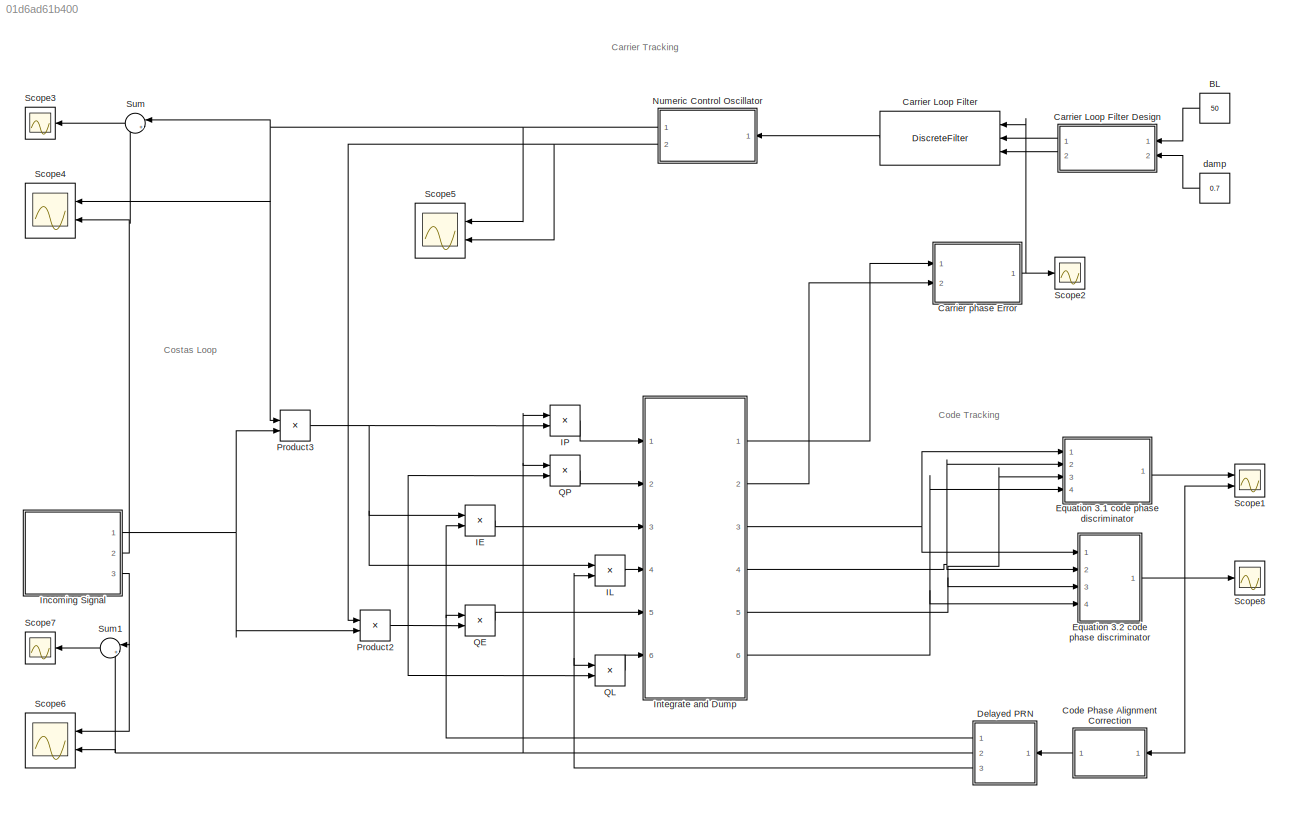
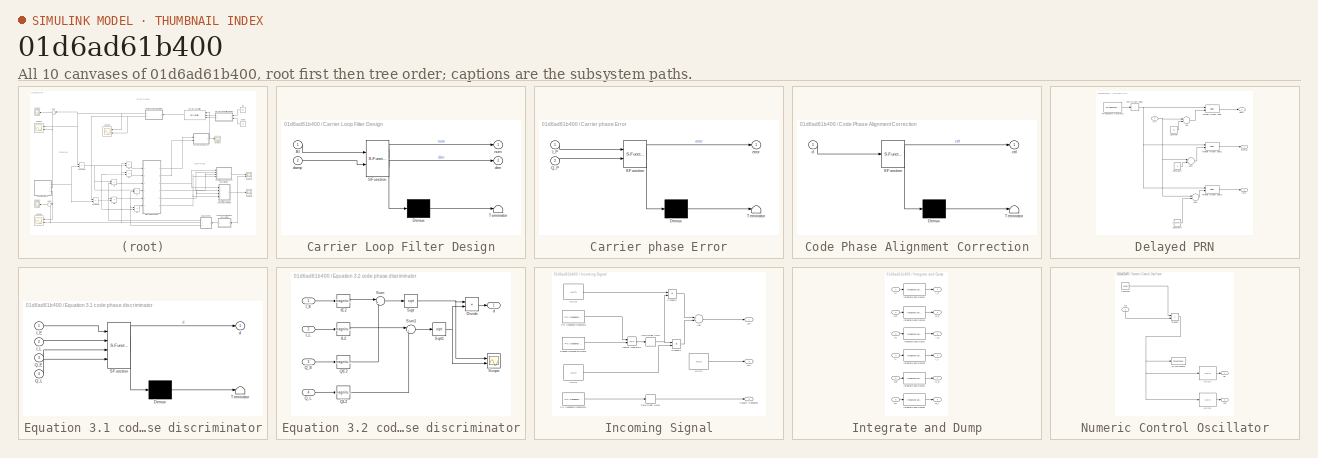
[diagram: thumbnail index - all 10 canvases of the model, root first then tree order]
MODEL slx_01d6ad61b400
KIND model
CONFIG AbsTol = auto
CONFIG FixedStep = auto
CONFIG InitFcn = SampleFreq = 122.76e6;\nSample_Time = 1/SampleFreq;\nIntegration_time = 1e-3;
CONFIG MaxStep = 8.145975887911372E-11
CONFIG MinStep = auto
CONFIG RelTol = 1e-3
CONFIG SampleTimeConstraint = Unconstrained
CONFIG Solver = VariableStepDiscrete
CONFIG SolverMode = Auto
CONFIG SolverName = VariableStepDiscrete
CONFIG StartTime = 0.0
CONFIG StopTime = 2e-3
BLOCK [Constant] BL
  Value = 50
BLOCK [DiscreteFilter] Carrier Loop Filter
  DenAccumDataTypeStr = fixdt(1,16,0)
  DenProductDataTypeStr = fixdt(1,16,0)
  Denominator = [1 -1 1]
  DenominatorSource = Input port
  FilterStructure = Direct form I
  InputPortMap = u0,p1,p3
  LockScale = on
  NumAccumDataTypeStr = fixdt(1,16,0)
  NumProductDataTypeStr = fixdt(1,16,0)
  Numerator = c1+c2
  NumeratorSource = Input port
  OutDataTypeStr = fixdt(1,16,0)
  Ports = [3, 1]
  SampleTime = Integration_time
  SaturateOnIntegerOverflow = on
  a0EqualsOne = on
BLOCK [SubSystem] Carrier Loop Filter Design
  ErrorFcn = Stateflow.Translate.translate
  PermitHierarchicalResolution = ExplicitOnly
  Ports = [2, 2]
  RequestExecContextInheritance = off
  SFBlockType = MATLAB Function
  TreatAsAtomicUnit = on
  Variant = off
BLOCK [Demux] Carrier Loop Filter Design/ Demux 
  Outputs = 1
  Ports = [1, 1]
BLOCK [S-Function] Carrier Loop Filter Design/ SFunction 
  EnableBusSupport = on
  FunctionName = sf_sfun
  PortCounts = [2 3]
  Ports = [2, 3]
  SFunctionDeploymentMode = off
  Tag = Stateflow S-Function Simplified_L1F_SPp 4
BLOCK [Terminator] Carrier Loop Filter Design/ Terminator 
BLOCK [Inport] Carrier Loop Filter Design/Bl
  IconDisplay = Port number
BLOCK [Inport] Carrier Loop Filter Design/damp
  IconDisplay = Port number
  Port = 2
BLOCK [Outport] Carrier Loop Filter Design/den
  IconDisplay = Port number
  Port = 2
BLOCK [Outport] Carrier Loop Filter Design/num
  IconDisplay = Port number
BLOCK [SubSystem] Carrier phase Error
  ErrorFcn = Stateflow.Translate.translate
  PermitHierarchicalResolution = ExplicitOnly
  Ports = [2, 1]
  RequestExecContextInheritance = off
  SFBlockType = MATLAB Function
  TreatAsAtomicUnit = on
  Variant = off
BLOCK [Demux] Carrier phase Error/ Demux 
  Outputs = 1
  Ports = [1, 1]
BLOCK [S-Function] Carrier phase Error/ SFunction 
  EnableBusSupport = on
  FunctionName = sf_sfun
  PortCounts = [2 2]
  Ports = [2, 2]
  SFunctionDeploymentMode = off
  Tag = Stateflow S-Function Simplified_L1F_SPp 3
BLOCK [Terminator] Carrier phase Error/ Terminator 
BLOCK [Inport] Carrier phase Error/I_P
  IconDisplay = Port number
BLOCK [Inport] Carrier phase Error/Q_P
  IconDisplay = Port number
  Port = 2
BLOCK [Outport] Carrier phase Error/error
  IconDisplay = Port number
BLOCK [SubSystem] Code Phase Alignment Correction
  ErrorFcn = Stateflow.Translate.translate
  PermitHierarchicalResolution = ExplicitOnly
  Ports = [1, 1]
  RequestExecContextInheritance = off
  SFBlockType = MATLAB Function
  TreatAsAtomicUnit = on
  Variant = off
BLOCK [Demux] Code Phase Alignment Correction/ Demux 
  Outputs = 1
  Ports = [1, 1]
BLOCK [S-Function] Code Phase Alignment Correction/ SFunction 
  EnableBusSupport = on
  FunctionName = sf_sfun
  PortCounts = [1 2]
  Ports = [1, 2]
  SFunctionDeploymentMode = off
  Tag = Stateflow S-Function Simplified_L1F_SPp 2
BLOCK [Terminator] Code Phase Alignment Correction/ Terminator 
BLOCK [Outport] Code Phase Alignment Correction/ctrl
  IconDisplay = Port number
BLOCK [Inport] Code Phase Alignment Correction/d
  IconDisplay = Port number
BLOCK [SubSystem] Delayed PRN
  Ports = [1, 3]
  RequestExecContextInheritance = off
  Variant = off
BLOCK [Sum] Delayed PRN/Add
  InputSameDT = off
  OutDataTypeStr = Inherit: Inherit via internal rule
  Ports = [2, 1]
  SaturateOnIntegerOverflow = off
BLOCK [Sum] Delayed PRN/Add1
  InputSameDT = off
  OutDataTypeStr = Inherit: Inherit via internal rule
  Ports = [2, 1]
  SaturateOnIntegerOverflow = off
BLOCK [Sum] Delayed PRN/Add2
  InputSameDT = off
  OutDataTypeStr = Inherit: Inherit via internal rule
  Ports = [2, 1]
  SaturateOnIntegerOverflow = off
BLOCK [Constant] Delayed PRN/Constant
  SampleTime = Sample_Time
  Value = 16
BLOCK [Constant] Delayed PRN/Constant2
  SampleTime = Sample_Time
  Value = 0
BLOCK [Constant] Delayed PRN/Constant4
  SampleTime = Sample_Time
  Value = 122.76e6-16
BLOCK [Outport] Delayed PRN/Early
  IconDisplay = Port number
BLOCK [Outport] Delayed PRN/Late
  IconDisplay = Port number
  Port = 3
BLOCK [Reference] Delayed PRN/PN Sequence Generator  REF=commseqgen3/PN Sequence
Generator
  Ports = [0, 1]
  SourceBlock = commseqgen3/PN Sequence\nGenerator
  SourceType = PN Sequence Generator
BLOCK [Outport] Delayed PRN/Prompt
  IconDisplay = Port number
  Port = 2
BLOCK [Delay] Delayed PRN/Variable Integer Delay
  DelayLengthSource = Input port
  InputPortMap = u0,p1
  Ports = [2, 1]
BLOCK [Delay] Delayed PRN/Variable Integer Delay1
  DelayLengthSource = Input port
  InputPortMap = u0,p1
  Ports = [2, 1]
BLOCK [Delay] Delayed PRN/Variable Integer Delay2
  DelayLengthSource = Input port
  InputPortMap = u0,p1
  Ports = [2, 1]
BLOCK [ZeroOrderHold] Delayed PRN/Zero-Order Hold2
  SampleTime = Sample_Time
BLOCK [Inport] Delayed PRN/ctrl
  IconDisplay = Port number
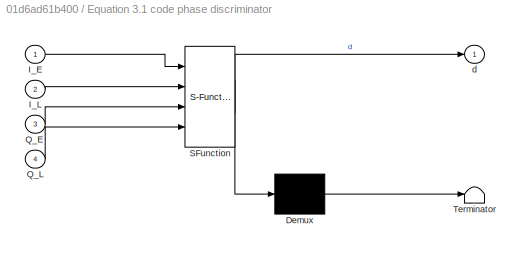
BLOCK [SubSystem] Equation 3.1 code phase discriminator
  ErrorFcn = Stateflow.Translate.translate
  PermitHierarchicalResolution = ExplicitOnly
  Ports = [4, 1]
  RequestExecContextInheritance = off
  SFBlockType = MATLAB Function
  TreatAsAtomicUnit = on
  Variant = off
BLOCK [Demux] Equation 3.1 code phase discriminator/ Demux 
  Outputs = 1
  Ports = [1, 1]
BLOCK [S-Function] Equation 3.1 code phase discriminator/ SFunction 
  EnableBusSupport = on
  FunctionName = sf_sfun
  PortCounts = [4 2]
  Ports = [4, 2]
  SFunctionDeploymentMode = off
  Tag = Stateflow S-Function Simplified_L1F_SPp 1
BLOCK [Terminator] Equation 3.1 code phase discriminator/ Terminator 
BLOCK [Inport] Equation 3.1 code phase discriminator/I_E
  IconDisplay = Port number
BLOCK [Inport] Equation 3.1 code phase discriminator/I_L
  IconDisplay = Port number
  Port = 2
BLOCK [Inport] Equation 3.1 code phase discriminator/Q_E
  IconDisplay = Port number
  Port = 3
BLOCK [Inport] Equation 3.1 code phase discriminator/Q_L
  IconDisplay = Port number
  Port = 4
BLOCK [Outport] Equation 3.1 code phase discriminator/d
  IconDisplay = Port number
BLOCK [SubSystem] Equation 3.2 code phase discriminator
  Ports = [4, 1]
  RequestExecContextInheritance = off
  Variant = off
BLOCK [Product] Equation 3.2 code phase discriminator/Divide
  InputSameDT = off
  Inputs = */
  OutDataTypeStr = Inherit: Inherit via internal rule
  Ports = [2, 1]
  RndMeth = Floor
  SaturateOnIntegerOverflow = off
BLOCK [Math] Equation 3.2 code phase discriminator/IE2
  Operator = magnitude^2
  Ports = [1, 1]
BLOCK [Math] Equation 3.2 code phase discriminator/IL2
  Operator = magnitude^2
  Ports = [1, 1]
BLOCK [Inport] Equation 3.2 code phase discriminator/I_E
  IconDisplay = Port number
BLOCK [Inport] Equation 3.2 code phase discriminator/I_L
  IconDisplay = Port number
  Port = 2
BLOCK [Math] Equation 3.2 code phase discriminator/QE2
  Operator = magnitude^2
  Ports = [1, 1]
BLOCK [Math] Equation 3.2 code phase discriminator/QL2
  Operator = magnitude^2
  Ports = [1, 1]
BLOCK [Inport] Equation 3.2 code phase discriminator/Q_E
  IconDisplay = Port number
  Port = 3
BLOCK [Inport] Equation 3.2 code phase discriminator/Q_L
  IconDisplay = Port number
  Port = 4
BLOCK [Scope] Equation 3.2 code phase discriminator/Scope
  NumInputPorts = 2
  Ports = [2]
  ScopeSpecificationString = C++SS(StrPVP('SaveName','ScopeData1'),StrPVP('LimitDataPoints','on'),StrPVP('DataFormat','Array'),StrPVP('Decimation','1'),StrPVP('BlockParamSampleInput','off'))
BLOCK [Sqrt] Equation 3.2 code phase discriminator/Sqrt
BLOCK [Sqrt] Equation 3.2 code phase discriminator/Sqrt1
BLOCK [Sum] Equation 3.2 code phase discriminator/Sum
  IconShape = round
  InputSameDT = off
  Inputs = |++
  OutDataTypeStr = Inherit: Inherit via internal rule
  Ports = [2, 1]
  SaturateOnIntegerOverflow = off
BLOCK [Sum] Equation 3.2 code phase discriminator/Sum1
  IconShape = round
  InputSameDT = off
  Inputs = |++
  OutDataTypeStr = Inherit: Inherit via internal rule
  Ports = [2, 1]
  SaturateOnIntegerOverflow = off
BLOCK [Outport] Equation 3.2 code phase discriminator/d
  IconDisplay = Port number
BLOCK [Product] IE
  InputSameDT = off
  OutDataTypeStr = Inherit: Inherit via internal rule
  Ports = [2, 1]
  RndMeth = Floor
  SaturateOnIntegerOverflow = off
BLOCK [Product] IL
  InputSameDT = off
  OutDataTypeStr = Inherit: Inherit via internal rule
  Ports = [2, 1]
  RndMeth = Floor
  SaturateOnIntegerOverflow = off
BLOCK [Product] IP
  InputSameDT = off
  OutDataTypeStr = Inherit: Inherit via internal rule
  Ports = [2, 1]
  RndMeth = Floor
  SaturateOnIntegerOverflow = off
BLOCK [SubSystem] Incoming Signal
  Ports = [0, 3]
  RequestExecContextInheritance = off
  Variant = off
BLOCK [Sum] Incoming Signal/Add
  InputSameDT = off
  OutDataTypeStr = Inherit: Inherit via internal rule
  Ports = [2, 1]
  SaturateOnIntegerOverflow = off
BLOCK [Outport] Incoming Signal/Kasami Sequence 
  IconDisplay = Port number
  Port = 3
BLOCK [Outport] Incoming Signal/L1F
  IconDisplay = Port number
BLOCK [Logic] Incoming Signal/Logical Operator2
  AllPortsSameDT = off
  Operator = XOR
  OutDataTypeStr = boolean
  Ports = [2, 1]
BLOCK [Reference] Incoming Signal/NCO2  REF=dspsigops/NCO
  Ports = [0, 1]
  SourceBlock = dspsigops/NCO
  SourceType = NCO
BLOCK [Reference] Incoming Signal/NCO3  REF=dspsigops/NCO
  Ports = [0, 1]
  SourceBlock = dspsigops/NCO
  SourceType = NCO
BLOCK [Reference] Incoming Signal/NCO4  REF=dspsigops/NCO
  Ports = [0, 1]
  SourceBlock = dspsigops/NCO
  SourceType = NCO
BLOCK [Reference] Incoming Signal/PN Sequence Generator  REF=commseqgen3/PN Sequence
Generator
  Ports = [0, 1]
  SourceBlock = commseqgen3/PN Sequence\nGenerator
  SourceType = PN Sequence Generator
BLOCK [Reference] Incoming Signal/PN Sequence Generator1  REF=commseqgen3/PN Sequence
Generator
  Ports = [0, 1]
  SourceBlock = commseqgen3/PN Sequence\nGenerator
  SourceType = PN Sequence Generator
BLOCK [Product] Incoming Signal/Product2
  InputSameDT = off
  OutDataTypeStr = Inherit: Inherit via internal rule
  Ports = [2, 1]
  RndMeth = Floor
  SaturateOnIntegerOverflow = off
BLOCK [Product] Incoming Signal/Product3
  InputSameDT = off
  OutDataTypeStr = Inherit: Inherit via internal rule
  Ports = [2, 1]
  RndMeth = Floor
  SaturateOnIntegerOverflow = off
BLOCK [Reference] Incoming Signal/Pseudo Navigation Data1  REF=commseqgen3/PN Sequence
Generator
  Ports = [0, 1]
  SourceBlock = commseqgen3/PN Sequence\nGenerator
  SourceType = PN Sequence Generator
BLOCK [ZeroOrderHold] Incoming Signal/Zero-Order Hold
  SampleTime = Sample_Time
BLOCK [ZeroOrderHold] Incoming Signal/Zero-Order Hold1
  SampleTime = Sample_Time
BLOCK [Outport] Incoming Signal/sin
  IconDisplay = Port number
  Port = 2
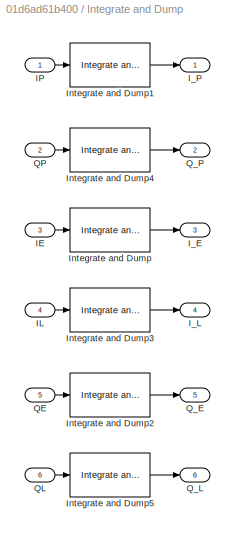
BLOCK [SubSystem] Integrate and Dump
  Ports = [6, 6]
  RequestExecContextInheritance = off
  Variant = off
BLOCK [Inport] Integrate and Dump/IE
  IconDisplay = Port number
  Port = 3
BLOCK [Inport] Integrate and Dump/IL
  IconDisplay = Port number
  Port = 4
BLOCK [Inport] Integrate and Dump/IP
  IconDisplay = Port number
BLOCK [Outport] Integrate and Dump/I_E
  IconDisplay = Port number
  Port = 3
BLOCK [Outport] Integrate and Dump/I_L
  IconDisplay = Port number
  Port = 4
BLOCK [Outport] Integrate and Dump/I_P
  IconDisplay = Port number
BLOCK [Reference] Integrate and Dump/Integrate and Dump  REF=commfilt2/Integrate
and Dump
  Ports = [1, 1]
  SourceBlock = commfilt2/Integrate\nand Dump
  SourceType = Integrate and Dump
BLOCK [Reference] Integrate and Dump/Integrate and Dump1  REF=commfilt2/Integrate
and Dump
  Ports = [1, 1]
  SourceBlock = commfilt2/Integrate\nand Dump
  SourceType = Integrate and Dump
BLOCK [Reference] Integrate and Dump/Integrate and Dump2  REF=commfilt2/Integrate
and Dump
  Ports = [1, 1]
  SourceBlock = commfilt2/Integrate\nand Dump
  SourceType = Integrate and Dump
BLOCK [Reference] Integrate and Dump/Integrate and Dump3  REF=commfilt2/Integrate
and Dump
  Ports = [1, 1]
  SourceBlock = commfilt2/Integrate\nand Dump
  SourceType = Integrate and Dump
BLOCK [Reference] Integrate and Dump/Integrate and Dump4  REF=commfilt2/Integrate
and Dump
  Ports = [1, 1]
  SourceBlock = commfilt2/Integrate\nand Dump
  SourceType = Integrate and Dump
BLOCK [Reference] Integrate and Dump/Integrate and Dump5  REF=commfilt2/Integrate
and Dump
  Ports = [1, 1]
  SourceBlock = commfilt2/Integrate\nand Dump
  SourceType = Integrate and Dump
BLOCK [Inport] Integrate and Dump/QE
  IconDisplay = Port number
  Port = 5
BLOCK [Inport] Integrate and Dump/QL
  IconDisplay = Port number
  Port = 6
BLOCK [Inport] Integrate and Dump/QP
  IconDisplay = Port number
  Port = 2
BLOCK [Outport] Integrate and Dump/Q_E
  IconDisplay = Port number
  Port = 5
BLOCK [Outport] Integrate and Dump/Q_L
  IconDisplay = Port number
  Port = 6
BLOCK [Outport] Integrate and Dump/Q_P
  IconDisplay = Port number
  Port = 2
BLOCK [SubSystem] Numeric Control Oscillator
  Ports = [1, 2]
  RequestExecContextInheritance = off
  Variant = off
BLOCK [Constant] Numeric Control Oscillator/Constant
  OutDataTypeStr = fixdt(1,16,0)
  SampleTime = Integration_time
  Value = 180/pi
BLOCK [Reference] Numeric Control Oscillator/NCO2  REF=dspsigops/NCO
  Ports = [1, 1]
  SourceBlock = dspsigops/NCO
  SourceType = NCO
BLOCK [Reference] Numeric Control Oscillator/NCO3  REF=dspsigops/NCO
  Ports = [1, 1]
  SourceBlock = dspsigops/NCO
  SourceType = NCO
BLOCK [Product] Numeric Control Oscillator/Product
  InputSameDT = off
  OutDataTypeStr = Inherit: Inherit via internal rule
  Ports = [2, 1]
  RndMeth = Floor
  SaturateOnIntegerOverflow = off
BLOCK [ToWorkspace] Numeric Control Oscillator/To Workspace
  FixptAsFi = on
  MaxDataPoints = inf
  Ports = [1]
  SampleTime = -1
  Save2DSignal = 2-D array (concatenate along first dimension)
  VariableName = simout6
BLOCK [Outport] Numeric Control Oscillator/cos
  IconDisplay = Port number
  Port = 2
BLOCK [Inport] Numeric Control Oscillator/ctlr
  IconDisplay = Port number
BLOCK [Outport] Numeric Control Oscillator/sin
  IconDisplay = Port number
BLOCK [Product] Product2
  InputSameDT = off
  OutDataTypeStr = Inherit: Inherit via internal rule
  Ports = [2, 1]
  RndMeth = Floor
  SaturateOnIntegerOverflow = off
BLOCK [Product] Product3
  InputSameDT = off
  OutDataTypeStr = Inherit: Inherit via internal rule
  Ports = [2, 1]
  RndMeth = Floor
  SaturateOnIntegerOverflow = off
BLOCK [Product] QE
  InputSameDT = off
  OutDataTypeStr = Inherit: Inherit via internal rule
  Ports = [2, 1]
  RndMeth = Floor
  SaturateOnIntegerOverflow = off
BLOCK [Product] QL
  InputSameDT = off
  OutDataTypeStr = Inherit: Inherit via internal rule
  Ports = [2, 1]
  RndMeth = Floor
  SaturateOnIntegerOverflow = off
BLOCK [Product] QP
  InputSameDT = off
  OutDataTypeStr = Inherit: Inherit via internal rule
  Ports = [2, 1]
  RndMeth = Floor
  SaturateOnIntegerOverflow = off
BLOCK [Scope] Scope1
  NumInputPorts = 2
  Ports = [2]
  ScopeSpecificationString = Simulink.scopes.TimeScopeBlockCfg('CurrentConfiguration', extmgr.ConfigurationSet(extmgr.Configuration('Core','General UI',true),extmgr.Configuration('Core','Source UI',true),extmgr.Configuration('Sources','WiredSimulink',true,'DataLoggingVariableName','ScopeData1'),extmgr.Configuration('Visuals','Time Domain',true,'SerializedDisplays',{struct('MinYLimReal','-1.90638','MaxYLimReal','7.16118','YLab...<+1466ch>
BLOCK [Scope] Scope2
  Ports = [1]
  ScopeSpecificationString = Simulink.scopes.TimeScopeBlockCfg('CurrentConfiguration', extmgr.ConfigurationSet(extmgr.Configuration('Core','General UI',true),extmgr.Configuration('Core','Source UI',true),extmgr.Configuration('Sources','WiredSimulink',true,'DataLoggingVariableName','ScopeData2','DataLoggingLimitDataPoints',true,'DataLoggingSaveFormat','Array','DataLoggingDecimation','1','DataLoggingDecimateData',true),extmgr.C...<+1505ch>
BLOCK [Scope] Scope3
  Ports = [1]
  ScopeSpecificationString = Simulink.scopes.TimeScopeBlockCfg('CurrentConfiguration', extmgr.ConfigurationSet(extmgr.Configuration('Core','General UI',true),extmgr.Configuration('Core','Source UI',true),extmgr.Configuration('Sources','WiredSimulink',true,'DataLoggingVariableName','ScopeData3','DataLoggingLimitDataPoints',true,'DataLoggingSaveFormat','Array','DataLoggingDecimation','1','DataLoggingDecimateData',true),extmgr.C...<+1484ch>
BLOCK [Scope] Scope4
  NumInputPorts = 2
  Ports = [2]
  ScopeSpecificationString = Simulink.scopes.TimeScopeBlockCfg('CurrentConfiguration', extmgr.ConfigurationSet(extmgr.Configuration('Core','General UI',true),extmgr.Configuration('Core','Source UI',true),extmgr.Configuration('Sources','WiredSimulink',true,'DataLoggingVariableName','ScopeData4'),extmgr.Configuration('Visuals','Time Domain',true,'SerializedDisplays',{struct('MinYLimReal','-1.0867','MaxYLimReal','1.13147','YLabe...<+1453ch>
BLOCK [Scope] Scope5
  NumInputPorts = 2
  Ports = [2]
  ScopeSpecificationString = Simulink.scopes.TimeScopeBlockCfg('CurrentConfiguration', extmgr.ConfigurationSet(extmgr.Configuration('Core','General UI',true),extmgr.Configuration('Core','Source UI',true),extmgr.Configuration('Sources','WiredSimulink',true,'DataLoggingVariableName','ScopeData5'),extmgr.Configuration('Visuals','Time Domain',true,'SerializedDisplays',{struct('MinYLimReal','-0.21509','MaxYLimReal','1.10475','YLab...<+1408ch>
BLOCK [Scope] Scope6
  NumInputPorts = 2
  Ports = [2]
  ScopeSpecificationString = Simulink.scopes.TimeScopeBlockCfg('CurrentConfiguration', extmgr.ConfigurationSet(extmgr.Configuration('Core','General UI',true),extmgr.Configuration('Core','Source UI',true),extmgr.Configuration('Sources','WiredSimulink',true,'DataLoggingVariableName','ScopeData6'),extmgr.Configuration('Visuals','Time Domain',true),extmgr.Configuration('Tools','Plot Navigation',true),extmgr.Configuration('Tools',...<+58ch>
BLOCK [Scope] Scope7
  Ports = [1]
  ScopeSpecificationString = Simulink.scopes.TimeScopeBlockCfg('CurrentConfiguration', extmgr.ConfigurationSet(extmgr.Configuration('Core','General UI',true),extmgr.Configuration('Core','Source UI',true),extmgr.Configuration('Sources','WiredSimulink',true,'DataLoggingVariableName','ScopeData7','DataLoggingLimitDataPoints',true,'DataLoggingSaveFormat','Array','DataLoggingDecimation','1','DataLoggingDecimateData',true),extmgr.C...<+1529ch>
BLOCK [Scope] Scope8
  Ports = [1]
  ScopeSpecificationString = Simulink.scopes.TimeScopeBlockCfg('CurrentConfiguration', extmgr.ConfigurationSet(extmgr.Configuration('Core','General UI',true),extmgr.Configuration('Core','Source UI',true),extmgr.Configuration('Sources','WiredSimulink',true,'DataLoggingVariableName','ScopeData1'),extmgr.Configuration('Visuals','Time Domain',true,'SerializedDisplays',{struct('MinYLimReal','0.9','MaxYLimReal','1.1','YLabelReal','...<+1391ch>
BLOCK [Sum] Sum
  IconShape = round
  InputSameDT = off
  Inputs = |+-
  OutDataTypeStr = Inherit: Inherit via internal rule
  Ports = [2, 1]
  SaturateOnIntegerOverflow = off
BLOCK [Sum] Sum1
  IconShape = round
  InputSameDT = off
  Inputs = |+-
  OutDataTypeStr = Inherit: Inherit via internal rule
  Ports = [2, 1]
  SaturateOnIntegerOverflow = off
BLOCK [Constant] damp
  Value = 0.7
ANNOTATION (root): Carrier Tracking
ANNOTATION (root): Code Tracking
ANNOTATION (root): Costas Loop
LINE BL:1 -> Carrier Loop Filter Design:1
LINE Carrier Loop Filter Design:1 -> Carrier Loop Filter:2
LINE Carrier Loop Filter Design:2 -> Carrier Loop Filter:3
LINE Carrier Loop Filter:1 -> Numeric Control Oscillator:1
NET Carrier phase Error:1 -> Carrier Loop Filter:1, Scope2:1
LINE Code Phase Alignment Correction:1 -> Delayed PRN:1
LINE Delayed PRN/Add1:1 -> Delayed PRN/Variable Integer Delay1:2
LINE Delayed PRN/Add2:1 -> Delayed PRN/Variable Integer Delay2:2
LINE Delayed PRN/Add:1 -> Delayed PRN/Variable Integer Delay:2
LINE Delayed PRN/Constant2:1 -> Delayed PRN/Add1:2
LINE Delayed PRN/Constant4:1 -> Delayed PRN/Add2:2
LINE Delayed PRN/Constant:1 -> Delayed PRN/Add:2
LINE Delayed PRN/PN Sequence Generator:1 -> Delayed PRN/Zero-Order Hold2:1
LINE Delayed PRN/Variable Integer Delay1:1 -> Delayed PRN/Prompt:1
LINE Delayed PRN/Variable Integer Delay2:1 -> Delayed PRN/Late:1
LINE Delayed PRN/Variable Integer Delay:1 -> Delayed PRN/Early:1
NET Delayed PRN/Zero-Order Hold2:1 -> Delayed PRN/Variable Integer Delay1:1, Delayed PRN/Variable Integer Delay2:1, Delayed PRN/Variable Integer Delay:1
NET Delayed PRN/ctrl:1 -> Delayed PRN/Add1:1, Delayed PRN/Add2:1, Delayed PRN/Add:1
NET Delayed PRN:1 -> IE:2, QE:1
NET Delayed PRN:2 -> IP:1, QP:1, Scope6:2, Sum1:2
NET Delayed PRN:3 -> IL:2, QL:1
LINE Equation 3.1 code phase discriminator:1 -> Scope1:1
LINE Equation 3.2 code phase discriminator/Divide:1 -> Equation 3.2 code phase discriminator/d:1
LINE Equation 3.2 code phase discriminator/IE2:1 -> Equation 3.2 code phase discriminator/Sum:1
LINE Equation 3.2 code phase discriminator/IL2:1 -> Equation 3.2 code phase discriminator/Sum1:1
LINE Equation 3.2 code phase discriminator/I_E:1 -> Equation 3.2 code phase discriminator/IE2:1
LINE Equation 3.2 code phase discriminator/I_L:1 -> Equation 3.2 code phase discriminator/IL2:1
LINE Equation 3.2 code phase discriminator/QE2:1 -> Equation 3.2 code phase discriminator/Sum:2
LINE Equation 3.2 code phase discriminator/QL2:1 -> Equation 3.2 code phase discriminator/Sum1:2
LINE Equation 3.2 code phase discriminator/Q_E:1 -> Equation 3.2 code phase discriminator/QE2:1
LINE Equation 3.2 code phase discriminator/Q_L:1 -> Equation 3.2 code phase discriminator/QL2:1
NET Equation 3.2 code phase discriminator/Sqrt1:1 -> Equation 3.2 code phase discriminator/Divide:2, Equation 3.2 code phase discriminator/Scope:2
NET Equation 3.2 code phase discriminator/Sqrt:1 -> Equation 3.2 code phase discriminator/Divide:1, Equation 3.2 code phase discriminator/Scope:1
LINE Equation 3.2 code phase discriminator/Sum1:1 -> Equation 3.2 code phase discriminator/Sqrt1:1
LINE Equation 3.2 code phase discriminator/Sum:1 -> Equation 3.2 code phase discriminator/Sqrt:1
NET Equation 3.2 code phase discriminator:1 -> Code Phase Alignment Correction:1, Scope1:2, Scope8:1
LINE IE:1 -> Integrate and Dump:3
LINE IL:1 -> Integrate and Dump:4
LINE IP:1 -> Integrate and Dump:1
LINE Incoming Signal/Add:1 -> Incoming Signal/L1F:1
LINE Incoming Signal/Logical Operator2:1 -> Incoming Signal/Zero-Order Hold:1
LINE Incoming Signal/NCO2:1 -> Incoming Signal/sin:1
LINE Incoming Signal/NCO3:1 -> Incoming Signal/Product3:1
LINE Incoming Signal/NCO4:1 -> Incoming Signal/Product2:2
LINE Incoming Signal/PN Sequence Generator1:1 -> Incoming Signal/Zero-Order Hold1:1
LINE Incoming Signal/PN Sequence Generator:1 -> Incoming Signal/Logical Operator2:1
LINE Incoming Signal/Product2:1 -> Incoming Signal/Add:2
LINE Incoming Signal/Product3:1 -> Incoming Signal/Add:1
LINE Incoming Signal/Pseudo Navigation Data1:1 -> Incoming Signal/Logical Operator2:2
LINE Incoming Signal/Zero-Order Hold1:1 -> Incoming Signal/Kasami Sequence :1
NET Incoming Signal/Zero-Order Hold:1 -> Incoming Signal/Product2:1, Incoming Signal/Product3:2
NET Incoming Signal:1 -> Product2:2, Product3:2
NET Incoming Signal:2 -> Scope4:2, Sum:2
NET Incoming Signal:3 -> Scope6:1, Sum1:1
LINE Integrate and Dump/IE:1 -> Integrate and Dump/Integrate and Dump:1
LINE Integrate and Dump/IL:1 -> Integrate and Dump/Integrate and Dump3:1
LINE Integrate and Dump/IP:1 -> Integrate and Dump/Integrate and Dump1:1
LINE Integrate and Dump/Integrate and Dump1:1 -> Integrate and Dump/I_P:1
LINE Integrate and Dump/Integrate and Dump2:1 -> Integrate and Dump/Q_E:1
LINE Integrate and Dump/Integrate and Dump3:1 -> Integrate and Dump/I_L:1
LINE Integrate and Dump/Integrate and Dump4:1 -> Integrate and Dump/Q_P:1
LINE Integrate and Dump/Integrate and Dump5:1 -> Integrate and Dump/Q_L:1
LINE Integrate and Dump/Integrate and Dump:1 -> Integrate and Dump/I_E:1
LINE Integrate and Dump/QE:1 -> Integrate and Dump/Integrate and Dump2:1
LINE Integrate and Dump/QL:1 -> Integrate and Dump/Integrate and Dump5:1
LINE Integrate and Dump/QP:1 -> Integrate and Dump/Integrate and Dump4:1
LINE Integrate and Dump:1 -> Carrier phase Error:1
LINE Integrate and Dump:2 -> Carrier phase Error:2
NET Integrate and Dump:3 -> Equation 3.1 code phase discriminator:1, Equation 3.2 code phase discriminator:1
NET Integrate and Dump:4 -> Equation 3.1 code phase discriminator:2, Equation 3.2 code phase discriminator:2
NET Integrate and Dump:5 -> Equation 3.1 code phase discriminator:3, Equation 3.2 code phase discriminator:3
NET Integrate and Dump:6 -> Equation 3.1 code phase discriminator:4, Equation 3.2 code phase discriminator:4
LINE Numeric Control Oscillator/Constant:1 -> Numeric Control Oscillator/Product:1
LINE Numeric Control Oscillator/NCO2:1 -> Numeric Control Oscillator/sin:1
LINE Numeric Control Oscillator/NCO3:1 -> Numeric Control Oscillator/cos:1
NET Numeric Control Oscillator/Product:1 -> Numeric Control Oscillator/NCO2:1, Numeric Control Oscillator/NCO3:1, Numeric Control Oscillator/To Workspace:1
LINE Numeric Control Oscillator/ctlr:1 -> Numeric Control Oscillator/Product:2
NET Numeric Control Oscillator:1 -> Product3:1, Scope4:1, Scope5:1, Sum:1
NET Numeric Control Oscillator:2 -> Product2:1, Scope5:2
NET Product2:1 -> QE:2, QL:2, QP:2
NET Product3:1 -> IE:1, IL:1, IP:2
LINE QE:1 -> Integrate and Dump:5
LINE QL:1 -> Integrate and Dump:6
LINE QP:1 -> Integrate and Dump:2
LINE Sum1:1 -> Scope7:1
LINE Sum:1 -> Scope3:1
LINE damp:1 -> Carrier Loop Filter Design:2
note: NET lines group one-source signal fan-out (src -> all destinations, sorted); 1:1 wires keep LINE
CHART Equation 3.1
code phase discriminator states=1 transitions=1
  STATE_LABEL 'eML_blk_kernel()'
  STATE_LABEL 'SCRIPT:\nfunction d = fcn(I_E,I_L,Q_E,Q_L)\nd = ((I_E^2+Q_E^2)-(I_L^2+Q_L^2))/((I_E^2+Q_E^2)+(I_L^2+Q_L^2));\nend'
CHART Code Phase
Alignment Correction states=1 transitions=1
  STATE_LABEL 'eML_blk_kernel()'
  STATE_LABEL 'SCRIPT:\nfunction ctrl = fcn(d)\n    ctrl = 0;\n    if d > 1.5\n    ctrl = ctrl - 1; \n    elseif d < 0.8\n    ctrl = ctrl + 1; \n    else\n    ctrl = ctrl + 0; \n    end\nend'
CHART Carrier phase Error states=1 transitions=1
  STATE_LABEL 'eML_blk_kernel()'
  STATE_LABEL 'SCRIPT:\nfunction error = fcn(I_P,Q_P)\nTbAn = [0 1 2 3 4 5 6 7 8 9 10 11 12 13 14 15 16 17 18 19 20 21 22 23 24 25 26 27 28 29 30 31 32 33 34 35 36 37 38 39 40 41 42 43 44 45 46 47 48 49 50 51 52 52 53 54 55 56 57 58 59 60 61 61 62 63 64 65 66 67 68 68 69 70 71 72 73 73 74 75 76 77 78 78 79 80 81 82 82 83 84 85 85 86 87 88 89 89 90 91 91 92 93 94 94 95 96 97 97 98 99 99 100 101 101 102 103 103 104 ...<+746ch>'
CHART Carrier Loop
Filter Design states=1 transitions=1
  STATE_LABEL 'eML_blk_kernel()'
  STATE_LABEL 'SCRIPT:\nfunction [num, den]= fcn(Bl, damp)\n    wn = 8*Bl*damp/(4*damp*damp+1);\n    dT = 1e-3;\n    k = 400*pi;\n    c1 = 1/k*8*damp*wn*dT/(4+4*damp*wn*dT+wn*wn*dT*dT);\n    c2 = 1/k*4*wn*wn*dT*dT/(4+4*damp*wn*dT+wn*wn*dT*dT);\n    num = [c1+c2 -c1];\n    den = [1 -1];\nend'
